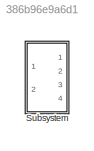
MODEL slx_386b96e9a6d1
KIND model
CONFIG AbsTol = auto
CONFIG EnableMultiTasking = off
CONFIG FixedStep = auto
CONFIG MaxStep = auto
CONFIG MinStep = auto
CONFIG RelTol = 1e-3
CONFIG SampleTimeConstraint = Unconstrained
CONFIG SolverName = VariableStepAuto
CONFIG StartTime = 0.0
CONFIG StopTime = 10.0
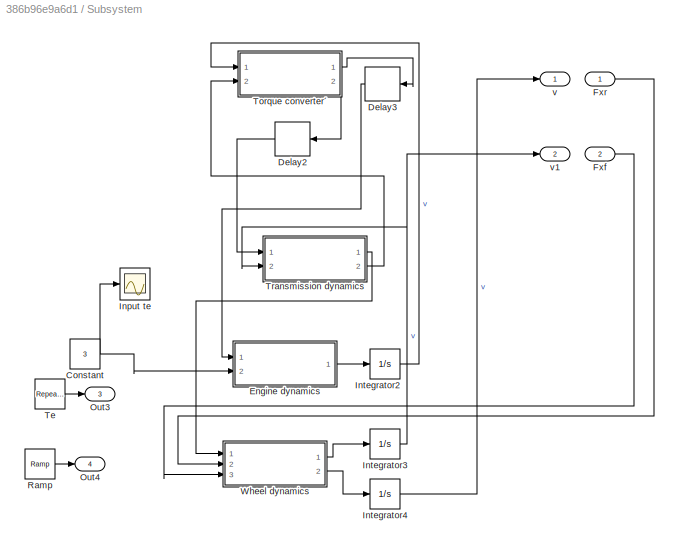
BLOCK [SubSystem] Subsystem
  Ports = [2, 4]
  RequestExecContextInheritance = off
BLOCK [Constant] Subsystem/Constant
  Value = 3
BLOCK [Delay] Subsystem/Delay2
  DelayLength = 1
  InitialCondition = 0
  InputPortMap = u0
  NameLocation = top
  Ports = [1, 1]
BLOCK [Delay] Subsystem/Delay3
  DelayLength = 1
  InitialCondition = 0
  InputPortMap = u0
  NameLocation = top
  Ports = [1, 1]
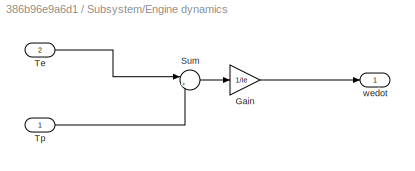
BLOCK [SubSystem] Subsystem/Engine dynamics
  Ports = [2, 1]
  RequestExecContextInheritance = off
BLOCK [Gain] Subsystem/Engine dynamics/Gain
  Gain = 1/Ie
BLOCK [Sum] Subsystem/Engine dynamics/Sum
  Inputs = |+|-
  Ports = [2, 1]
BLOCK [Inport] Subsystem/Engine dynamics/Te
  Port = 2
BLOCK [Inport] Subsystem/Engine dynamics/Tp
BLOCK [Outport] Subsystem/Engine dynamics/wedot
BLOCK [Inport] Subsystem/Fxf
  Port = 2
BLOCK [Inport] Subsystem/Fxr
BLOCK [Scope] Subsystem/Input te
  Floating = off
  NumInputPorts = 1
  Ports = [1]
  ScopeSpecificationString = Simulink.scopes.TimeScopeBlockCfg('CurrentConfiguration', extmgr.ConfigurationSet(extmgr.Configuration('Core','General UI',true),extmgr.Configuration('Core','Source UI',true),extmgr.Configuration('Sources','WiredSimulink',true,'DataLoggingVariableName','ScopeData1'),extmgr.Configuration('Visuals','Time Domain',true,'SerializedDisplays',{struct('MinYLimReal','2.00000','MaxYLimReal','4.00000','YLabe...<+1400ch>
BLOCK [Integrator] Subsystem/Integrator2
  Ports = [1, 1]
BLOCK [Integrator] Subsystem/Integrator3
  Ports = [1, 1]
BLOCK [Integrator] Subsystem/Integrator4
  Ports = [1, 1]
BLOCK [Outport] Subsystem/Out3
  Port = 3
BLOCK [Outport] Subsystem/Out4
  Port = 4
BLOCK [Reference] Subsystem/Ramp  REF=simulink/Sources/Ramp
  Ports = [0, 1]
  SourceBlock = simulink/Sources/Ramp
  SourceProductBaseCode = SL
  SourceType = Ramp
BLOCK [Reference] Subsystem/Te  REF=simulink/Sources/Repeating
Sequence
  Ports = [0, 1]
  SourceBlock = simulink/Sources/Repeating\nSequence
  SourceProductBaseCode = SL
  SourceType = Repeating table
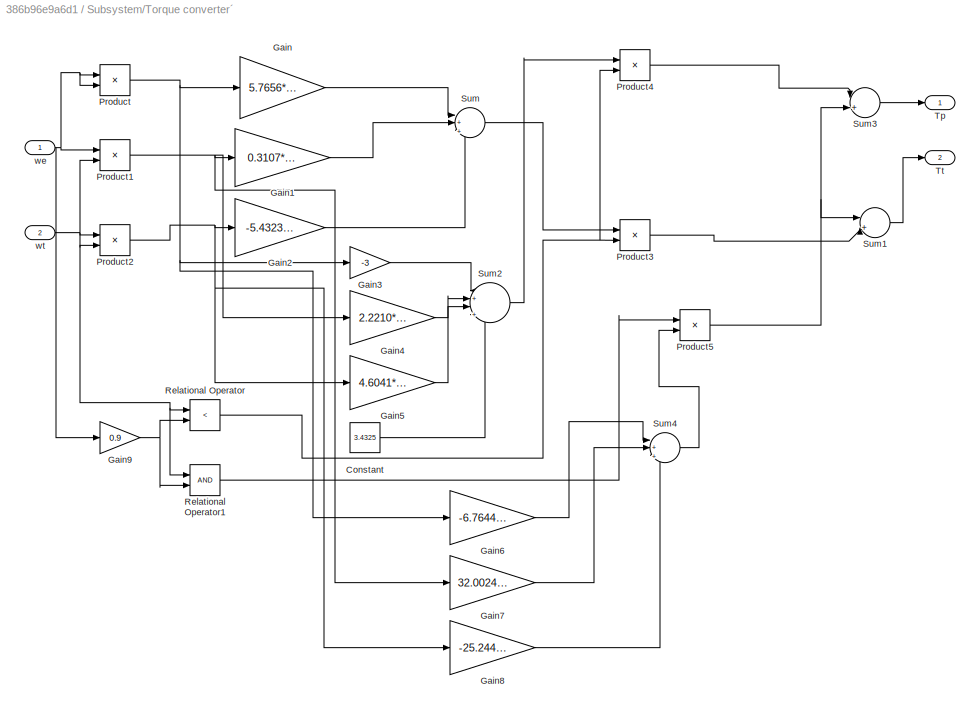
BLOCK [SubSystem] Subsystem/Torque converter´
  Ports = [2, 2]
  RequestExecContextInheritance = off
BLOCK [Constant] Subsystem/Torque converter´/Constant
  Value = 3.4325
BLOCK [Gain] Subsystem/Torque converter´/Gain
  Gain = 5.7656*10^(-3)
BLOCK [Gain] Subsystem/Torque converter´/Gain1
  Gain = 0.3107*10^(-3)
BLOCK [Gain] Subsystem/Torque converter´/Gain2
  Gain = -5.4323*10^(-3)
BLOCK [Gain] Subsystem/Torque converter´/Gain3
  Gain = -3
BLOCK [Gain] Subsystem/Torque converter´/Gain4
  Gain = 2.2210*10^(-3)
BLOCK [Gain] Subsystem/Torque converter´/Gain5
  Gain = 4.6041*10^(-3)
BLOCK [Gain] Subsystem/Torque converter´/Gain6
  Gain = -6.7644*10^(-3)
BLOCK [Gain] Subsystem/Torque converter´/Gain7
  Gain = 32.0024*10^(-3)
BLOCK [Gain] Subsystem/Torque converter´/Gain8
  Gain = -25.2441*10^(-3)
BLOCK [Gain] Subsystem/Torque converter´/Gain9
  Gain = 0.9
BLOCK [Product] Subsystem/Torque converter´/Product
  Ports = [2, 1]
BLOCK [Product] Subsystem/Torque converter´/Product1
  Ports = [2, 1]
BLOCK [Product] Subsystem/Torque converter´/Product2
  Ports = [2, 1]
BLOCK [Product] Subsystem/Torque converter´/Product3
  Ports = [2, 1]
BLOCK [Product] Subsystem/Torque converter´/Product4
  Ports = [2, 1]
BLOCK [Product] Subsystem/Torque converter´/Product5
  Ports = [2, 1]
BLOCK [RelationalOperator] Subsystem/Torque converter´/Relational Operator
  InputSameDT = off
  Operator = <
  OutDataTypeStr = boolean
  Ports = [2, 1]
  RndMeth = Simplest
  ZeroCross = off
BLOCK [RelationalOperator] Subsystem/Torque converter´/Relational Operator1
  InputSameDT = off
  OutDataTypeStr = boolean
  Ports = [2, 1]
  RndMeth = Simplest
  ZeroCross = off
BLOCK [Sum] Subsystem/Torque converter´/Sum
  Inputs = |+|+|+
  Ports = [3, 1]
BLOCK [Sum] Subsystem/Torque converter´/Sum1
  Inputs = |+|+|
  Ports = [2, 1]
BLOCK [Sum] Subsystem/Torque converter´/Sum2
  Inputs = |+|+|+|+
  Ports = [4, 1]
BLOCK [Sum] Subsystem/Torque converter´/Sum3
  Inputs = |+|+|
  Ports = [2, 1]
BLOCK [Sum] Subsystem/Torque converter´/Sum4
  Inputs = |+|+|+
  Ports = [3, 1]
BLOCK [Outport] Subsystem/Torque converter´/Tp
BLOCK [Outport] Subsystem/Torque converter´/Tt
  Port = 2
BLOCK [Inport] Subsystem/Torque converter´/we
BLOCK [Inport] Subsystem/Torque converter´/wt
  Port = 2
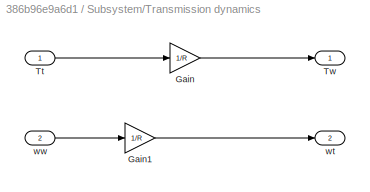
BLOCK [SubSystem] Subsystem/Transmission dynamics
  Ports = [2, 2]
  RequestExecContextInheritance = off
BLOCK [Gain] Subsystem/Transmission dynamics/Gain
  Gain = 1/R
BLOCK [Gain] Subsystem/Transmission dynamics/Gain1
  Gain = 1/R
BLOCK [Inport] Subsystem/Transmission dynamics/Tt
BLOCK [Outport] Subsystem/Transmission dynamics/Tw
BLOCK [Outport] Subsystem/Transmission dynamics/wt
  Port = 2
BLOCK [Inport] Subsystem/Transmission dynamics/ww
  Port = 2
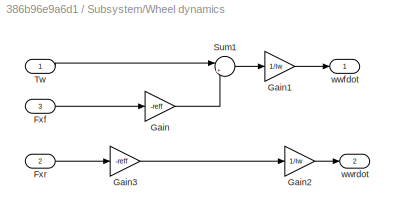
BLOCK [SubSystem] Subsystem/Wheel dynamics
  Ports = [3, 2]
  RequestExecContextInheritance = off
BLOCK [Inport] Subsystem/Wheel dynamics/Fxf
  Port = 3
BLOCK [Inport] Subsystem/Wheel dynamics/Fxr
  Port = 2
BLOCK [Gain] Subsystem/Wheel dynamics/Gain
  Gain = -reff
BLOCK [Gain] Subsystem/Wheel dynamics/Gain1
  Gain = 1/Iw
BLOCK [Gain] Subsystem/Wheel dynamics/Gain2
  Gain = 1/Iw
BLOCK [Gain] Subsystem/Wheel dynamics/Gain3
  Gain = -reff
BLOCK [Sum] Subsystem/Wheel dynamics/Sum1
  Inputs = |++
  Ports = [2, 1]
BLOCK [Inport] Subsystem/Wheel dynamics/Tw
BLOCK [Outport] Subsystem/Wheel dynamics/wwfdot
BLOCK [Outport] Subsystem/Wheel dynamics/wwrdot
  Port = 2
BLOCK [Outport] Subsystem/v
BLOCK [Outport] Subsystem/v1
  Port = 2
NET Subsystem/Constant:1 -> Subsystem/Engine dynamics:2, Subsystem/Input te:1
LINE Subsystem/Delay2:1 -> Subsystem/Transmission dynamics:1
LINE Subsystem/Delay3:1 -> Subsystem/Engine dynamics:1
LINE Subsystem/Engine dynamics/Gain:1 -> Subsystem/Engine dynamics/wedot:1
LINE Subsystem/Engine dynamics/Sum:1 -> Subsystem/Engine dynamics/Gain:1
LINE Subsystem/Engine dynamics/Te:1 -> Subsystem/Engine dynamics/Sum:1
LINE Subsystem/Engine dynamics/Tp:1 -> Subsystem/Engine dynamics/Sum:2
LINE Subsystem/Engine dynamics:1 -> Subsystem/Integrator2:1
LINE Subsystem/Fxf:1 -> Subsystem/Wheel dynamics:3
LINE Subsystem/Fxr:1 -> Subsystem/Wheel dynamics:2
LINE Subsystem/Integrator2:1 -> Subsystem/Torque converter´:1
NET Subsystem/Integrator3:1 -> Subsystem/Transmission dynamics:2, Subsystem/v1:1
LINE Subsystem/Integrator4:1 -> Subsystem/v:1
LINE Subsystem/Ramp:1 -> Subsystem/Out4:1
LINE Subsystem/Te:1 -> Subsystem/Out3:1
LINE Subsystem/Torque converter´/Constant:1 -> Subsystem/Torque converter´/Sum2:4
LINE Subsystem/Torque converter´/Gain1:1 -> Subsystem/Torque converter´/Sum:2
LINE Subsystem/Torque converter´/Gain2:1 -> Subsystem/Torque converter´/Sum:3
LINE Subsystem/Torque converter´/Gain3:1 -> Subsystem/Torque converter´/Sum2:1
LINE Subsystem/Torque converter´/Gain4:1 -> Subsystem/Torque converter´/Sum2:2
LINE Subsystem/Torque converter´/Gain5:1 -> Subsystem/Torque converter´/Sum2:3
LINE Subsystem/Torque converter´/Gain6:1 -> Subsystem/Torque converter´/Sum4:1
LINE Subsystem/Torque converter´/Gain7:1 -> Subsystem/Torque converter´/Sum4:2
LINE Subsystem/Torque converter´/Gain8:1 -> Subsystem/Torque converter´/Sum4:3
NET Subsystem/Torque converter´/Gain9:1 -> Subsystem/Torque converter´/Relational Operator1:2, Subsystem/Torque converter´/Relational Operator:2
LINE Subsystem/Torque converter´/Gain:1 -> Subsystem/Torque converter´/Sum:1
NET Subsystem/Torque converter´/Product1:1 -> Subsystem/Torque converter´/Gain1:1, Subsystem/Torque converter´/Gain4:1, Subsystem/Torque converter´/Gain7:1
NET Subsystem/Torque converter´/Product2:1 -> Subsystem/Torque converter´/Gain2:1, Subsystem/Torque converter´/Gain5:1, Subsystem/Torque converter´/Gain8:1
LINE Subsystem/Torque converter´/Product3:1 -> Subsystem/Torque converter´/Sum1:2
LINE Subsystem/Torque converter´/Product4:1 -> Subsystem/Torque converter´/Sum3:1
NET Subsystem/Torque converter´/Product5:1 -> Subsystem/Torque converter´/Sum1:1, Subsystem/Torque converter´/Sum3:2
NET Subsystem/Torque converter´/Product:1 -> Subsystem/Torque converter´/Gain3:1, Subsystem/Torque converter´/Gain6:1, Subsystem/Torque converter´/Gain:1
LINE Subsystem/Torque converter´/Relational Operator1:1 -> Subsystem/Torque converter´/Product5:1
NET Subsystem/Torque converter´/Relational Operator:1 -> Subsystem/Torque converter´/Product3:2, Subsystem/Torque converter´/Product4:2
LINE Subsystem/Torque converter´/Sum1:1 -> Subsystem/Torque converter´/Tt:1
LINE Subsystem/Torque converter´/Sum2:1 -> Subsystem/Torque converter´/Product4:1
LINE Subsystem/Torque converter´/Sum3:1 -> Subsystem/Torque converter´/Tp:1
LINE Subsystem/Torque converter´/Sum4:1 -> Subsystem/Torque converter´/Product5:2
LINE Subsystem/Torque converter´/Sum:1 -> Subsystem/Torque converter´/Product3:1
NET Subsystem/Torque converter´/we:1 -> Subsystem/Torque converter´/Gain9:1, Subsystem/Torque converter´/Product1:1, Subsystem/Torque converter´/Product:1, Subsystem/Torque converter´/Product:2
NET Subsystem/Torque converter´/wt:1 -> Subsystem/Torque converter´/Product1:2, Subsystem/Torque converter´/Product2:1, Subsystem/Torque converter´/Product2:2, Subsystem/Torque converter´/Relational Operator1:1, Subsystem/Torque converter´/Relational Operator:1
LINE Subsystem/Torque converter´:1 -> Subsystem/Delay3:1
LINE Subsystem/Torque converter´:2 -> Subsystem/Delay2:1
LINE Subsystem/Transmission dynamics/Gain1:1 -> Subsystem/Transmission dynamics/wt:1
LINE Subsystem/Transmission dynamics/Gain:1 -> Subsystem/Transmission dynamics/Tw:1
LINE Subsystem/Transmission dynamics/Tt:1 -> Subsystem/Transmission dynamics/Gain:1
LINE Subsystem/Transmission dynamics/ww:1 -> Subsystem/Transmission dynamics/Gain1:1
LINE Subsystem/Transmission dynamics:1 -> Subsystem/Wheel dynamics:1
LINE Subsystem/Transmission dynamics:2 -> Subsystem/Torque converter´:2
LINE Subsystem/Wheel dynamics/Fxf:1 -> Subsystem/Wheel dynamics/Gain:1
LINE Subsystem/Wheel dynamics/Fxr:1 -> Subsystem/Wheel dynamics/Gain3:1
LINE Subsystem/Wheel dynamics/Gain1:1 -> Subsystem/Wheel dynamics/wwfdot:1
LINE Subsystem/Wheel dynamics/Gain2:1 -> Subsystem/Wheel dynamics/wwrdot:1
LINE Subsystem/Wheel dynamics/Gain3:1 -> Subsystem/Wheel dynamics/Gain2:1
LINE Subsystem/Wheel dynamics/Gain:1 -> Subsystem/Wheel dynamics/Sum1:2
LINE Subsystem/Wheel dynamics/Sum1:1 -> Subsystem/Wheel dynamics/Gain1:1
LINE Subsystem/Wheel dynamics/Tw:1 -> Subsystem/Wheel dynamics/Sum1:1
LINE Subsystem/Wheel dynamics:1 -> Subsystem/Integrator3:1
LINE Subsystem/Wheel dynamics:2 -> Subsystem/Integrator4:1
note: NET lines group one-source signal fan-out (src -> all destinations, sorted); 1:1 wires keep LINE
